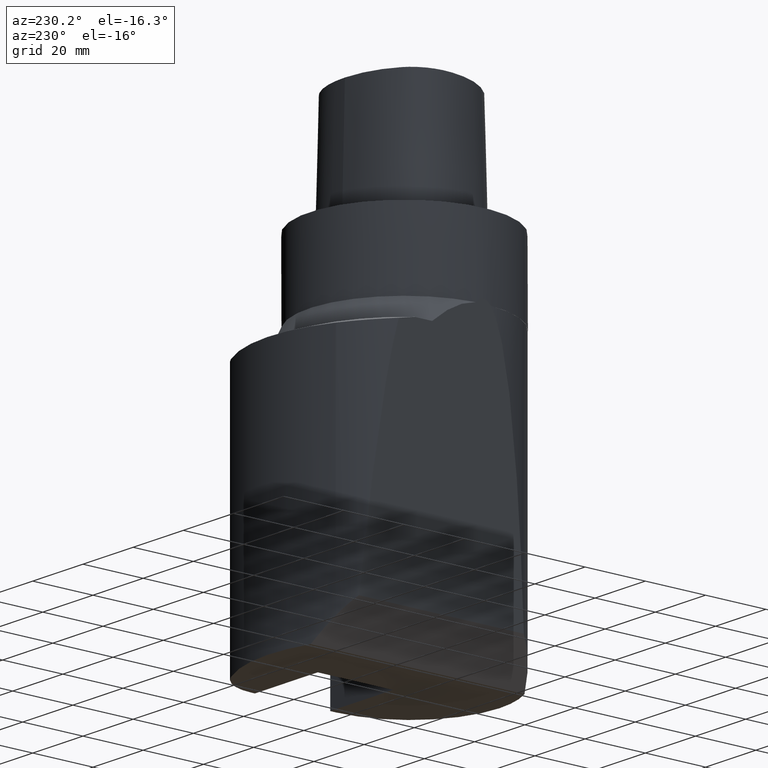
[diagram: clean part render]
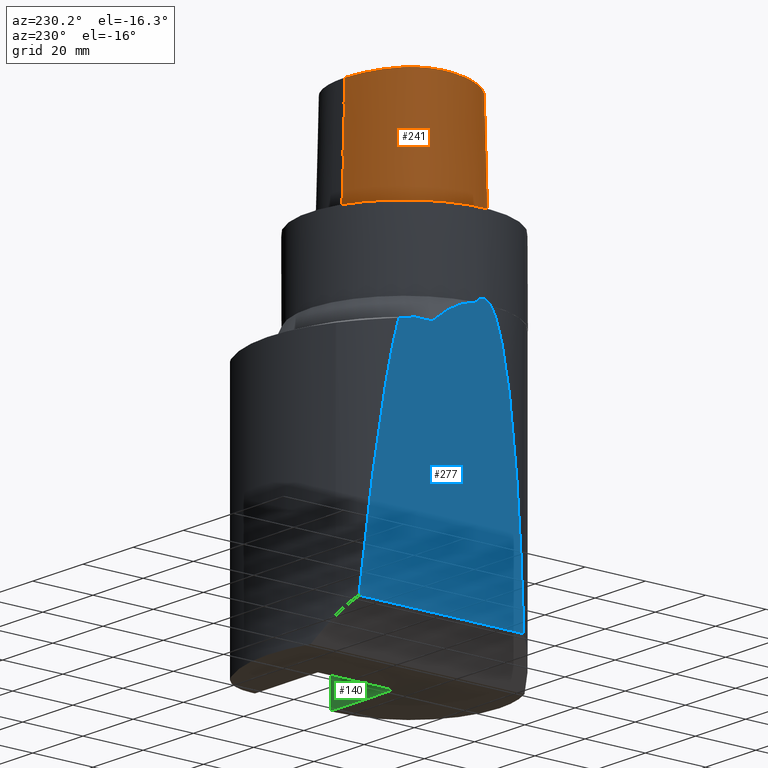
[diagram: same view with three faces highlighted in distinct colors, each labeled with its STEP entity id]
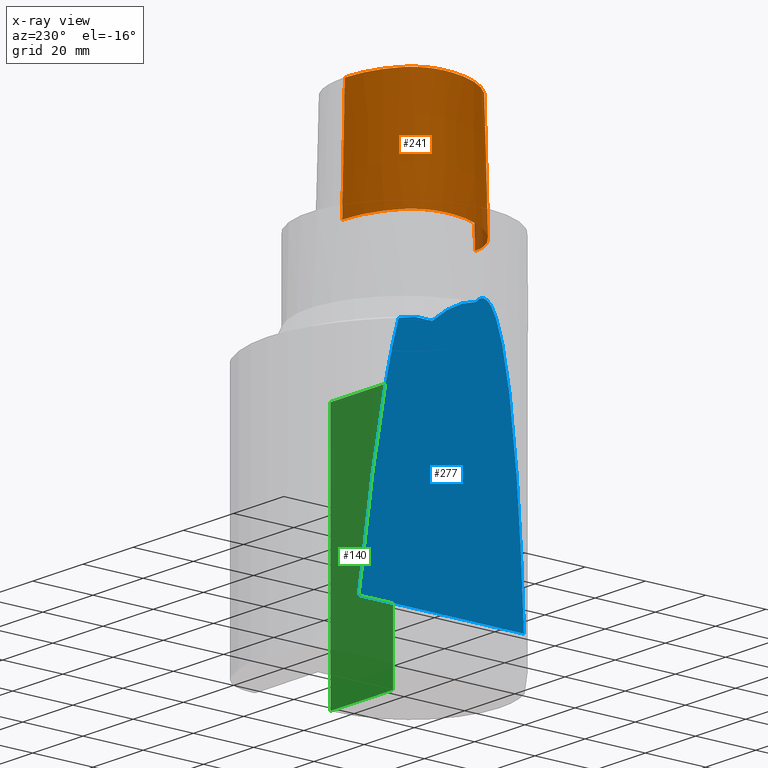
[diagram: x-ray of the same camera — body ghosted, the three highlighted faces saturated]
A machine part, auxiliary view with three faces highlighted in distinct colors.
The next image is the same camera in x-ray (body ghosted, the three faces saturated) — at least one of them is partly hidden behind the body in this view.
Their STEP definitions:

[orange] entity #241 — the highlighted face is a freeform B-spline surface patch.
#144=EDGE_CURVE('240[2]',#374,#375,#376,.T.);
#213=EDGE_CURVE('240[2]',#321,#344,#475,.T.);
#223=EDGE_CURVE('240[2]',#374,#321,#487,.T.);
#230=EDGE_CURVE('240[2]',#375,#344,#495,.T.);
#241=ADVANCED_FACE('240[2]',(#507),#508,.T.);
#321=VERTEX_POINT('',#589);
#344=VERTEX_POINT('',#620);
#374=VERTEX_POINT('',#703);
#375=VERTEX_POINT('',#704);
#376=B_SPLINE_CURVE_WITH_KNOTS('',3,(#705,#706,#707,#708,#709,#710,#711,#712,#713,#714,#715,#716,#717,#718,#719,#720),.UNSPECIFIED.,.F.,.F.,(4,1,1,1,1,1,1,1,1,1,1,1,1,4),(0.0,0.447924670568964,0.9388024242536,1.50591409090711,2.07314340012323,2.72424957442464,3.2253501842849,3.80982102049476,4.34867996267067,4.85900173381144,5.37972031856977,6.03459825488646,6.61113557741484,6.61513393087368),.UNSPECIFIED.);
#475=B_SPLINE_CURVE_WITH_KNOTS('',3,(#913,#914,#915,#916,#917,#918,#919,#920,#921,#922,#923,#924,#925,#926,#927,#928,#929,#930,#931,#932,#933,#934,#935,#936,#937,#938,#939,#940,#941,#942),.UNSPECIFIED.,.F.,.F.,(4,2,2,2,2,2,2,2,2,2,2,2,2,2,4),(0.0,0.576808184119594,1.15361636823919,1.43293031700624,1.7122442657733,1.99155821454036,2.27087216330741,2.85949822796588,3.15381126029511,3.44812429262434,4.36563722999232,5.28315016736029,5.8130055067864,6.21406971883035,6.6151339308743),.UNSPECIFIED.);
#487=LINE('',#959,#960);
#495=LINE('',#972,#973);
#507=FACE_OUTER_BOUND('',#992,.T.);
#508=B_SPLINE_SURFACE_WITH_KNOTS('',3,3,((#993,#994,#995,#996),(#997,#998,#999,#1000),(#1001,#1002,#1003,#1004),(#1005,#1006,#1007,#1008),(#1009,#1010,#1011,#1012),(#1013,#1014,#1015,#1016),(#1017,#1018,#1019,#1020),(#1021,#1022,#1023,#1024),(#1025,#1026,#1027,#1028),(#1029,#1030,#1031,#1032),(#1033,#1034,#1035,#1036),(#1037,#1038,#1039,#1040),(#1041,#1042,#1043,#1044),(#1045,#1046,#1047,#1048),(#1049,#1050,#1051,#1052),(#1053,#1054,#1055,#1056),(#1057,#1058,#1059,#1060),(#1061,#1062,#1063,#1064)),.UNSPECIFIED.,.F.,.F.,.F.,(4,1,1,1,1,1,1,1,1,2,1,1,1,1,4),(4,4),(-6.6151339308743,-6.20168806019465,-5.78824218951501,-5.37479631883537,-4.96135044815572,-4.13445870679644,-3.30756696543715,-2.89412109475751,-2.48067522407786,-2.06722935339822,-1.65378348271857,-1.24033761203893,-0.826891741359287,-0.413445870679644,0.0),(-3.8,0.0),.UNSPECIFIED.);
#589=CARTESIAN_POINT('',(-0.045171994691285,20.6766009553285,0.0));
#620=CARTESIAN_POINT('',(0.04359356758149,-23.4691235068931,0.0));
#703=CARTESIAN_POINT('',(-0.001218547003662,19.7276821925089,38.0));
#704=CARTESIAN_POINT('',(0.038736923393866,-22.5191997536361,38.0));
#705=CARTESIAN_POINT('',(-0.001218547003662,19.7276821925089,38.0));
#706=CARTESIAN_POINT('',(-1.49408492138443,19.6585333605309,38.0));
#707=CARTESIAN_POINT('',(-4.62297391420352,19.513604770166,38.0));
#708=CARTESIAN_POINT('',(-9.56160616752212,18.4291575730197,38.0));
#709=CARTESIAN_POINT('',(-14.5427684976927,16.2697452580488,38.0));
#710=CARTESIAN_POINT('',(-19.4315563551602,12.5302108980807,38.0));
#711=CARTESIAN_POINT('',(-21.306358833612,6.76352894547076,38.0));
#712=CARTESIAN_POINT('',(-21.0724946936277,0.957075236984038,38.0));
#713=CARTESIAN_POINT('',(-19.7876470880144,-4.34628503581652,38.0));
#714=CARTESIAN_POINT('',(-17.5396999600095,-9.33314444653089,38.0));
#715=CARTESIAN_POINT('',(-14.645447733857,-13.7185760345629,38.0));
#716=CARTESIAN_POINT('',(-10.7996726536643,-17.856257282137,38.0));
#717=CARTESIAN_POINT('',(-6.00479510196376,-21.2687382067675,38.0));
#718=CARTESIAN_POINT('',(-1.90747171908525,-22.5250621415864,38.0));
#719=CARTESIAN_POINT('',(0.025424107066464,-22.5192678176378,38.0));
#720=CARTESIAN_POINT('',(0.038736923394311,-22.519199753636,38.0));
#913=CARTESIAN_POINT('',(-0.045171994691285,20.6766009553285,0.0));
#914=CARTESIAN_POINT('',(-1.96758797023018,20.5875555983123,0.0));
#915=CARTESIAN_POINT('',(-3.95342611673668,20.4850284912479,-1.421085E-014));
#916=CARTESIAN_POINT('',(-7.86342529995983,19.7967909190733,7.105427E-015));
#917=CARTESIAN_POINT('',(-9.79439573378639,19.2503426360022,-1.421085E-014));
#918=CARTESIAN_POINT('',(-12.5351742003408,18.1332577991903,0.0));
#919=CARTESIAN_POINT('',(-13.4106560097683,17.7191970550452,0.0));
#920=CARTESIAN_POINT('',(-15.1227536857037,16.7802221286297,7.105427E-015));
#921=CARTESIAN_POINT('',(-15.9615364355591,16.2592643918937,0.0));
#922=CARTESIAN_POINT('',(-17.5597683566648,15.0665385774434,0.0));
#923=CARTESIAN_POINT('',(-18.3143568572283,14.3955246024635,-7.105427E-015));
#924=CARTESIAN_POINT('',(-19.638502795217,12.8665014798265,-7.105427E-015));
#925=CARTESIAN_POINT('',(-20.1979602542332,11.999774776593,0.0));
#926=CARTESIAN_POINT('',(-21.5622718142072,9.15853750369237,0.0));
#927=CARTESIAN_POINT('',(-21.9947483544612,7.02185767378744,0.0));
#928=CARTESIAN_POINT('',(-22.1134563193034,3.90325125553384,0.0));
#929=CARTESIAN_POINT('',(-22.0668279345839,2.87928778574124,0.0));
#930=CARTESIAN_POINT('',(-21.8551986681238,0.853042087412899,0.0));
#931=CARTESIAN_POINT('',(-21.6926789478513,-0.149498515836233,-1.421085E-014));
#932=CARTESIAN_POINT('',(-20.816421377794,-4.23736740865811,1.421085E-014));
#933=CARTESIAN_POINT('',(-19.659579746308,-7.20863943907163,-1.421085E-014));
#934=CARTESIAN_POINT('',(-16.574666895304,-12.7137973313948,0.0));
#935=CARTESIAN_POINT('',(-14.6473715787034,-15.2481179483411,-7.105427E-015));
#936=CARTESIAN_POINT('',(-11.050022952355,-18.7018400427945,7.105427E-015));
#937=CARTESIAN_POINT('',(-9.61826302632357,-19.8571497088389,0.0));
#938=CARTESIAN_POINT('',(-6.85491632421896,-21.5712784212,-1.421085E-014));
#939=CARTESIAN_POINT('',(-5.58035985461548,-22.2135461215161,0.0));
#940=CARTESIAN_POINT('',(-2.86743329636734,-23.1704091567902,0.0));
#941=CARTESIAN_POINT('',(-1.42611943322398,-23.4766376606116,0.0));
#942=CARTESIAN_POINT('',(0.04359356758149,-23.4691235068931,0.0));
#959=CARTESIAN_POINT('',(-0.001218547003662,19.7276821925089,38.0));
#960=VECTOR('',#1439,38.0118715498723);
#972=CARTESIAN_POINT('',(0.038736923393866,-22.5191997536361,38.0));
#973=VECTOR('',#1449,38.0118715498723);
#992=EDGE_LOOP('',(#1459,#1460,#1461,#1462));
#993=CARTESIAN_POINT('',(0.038736923393866,-22.5191997536361,38.0));
#994=CARTESIAN_POINT('',(0.04035580478973,-22.8358410047159,25.3333333333066));
#995=CARTESIAN_POINT('',(0.041974686185626,-23.1524822558133,12.6666666666934));
#996=CARTESIAN_POINT('',(0.04359356758149,-23.4691235068931,0.0));
#997=CARTESIAN_POINT('',(-1.33786123484754,-22.5261650259856,38.0));
#998=CARTESIAN_POINT('',(-1.38240731367927,-22.8430399310626,25.3333333333066));
#999=CARTESIAN_POINT('',(-1.42695339249092,-23.1599147815484,12.6666666666934));
#1000=CARTESIAN_POINT('',(-1.4714994713963,-23.4767895315797,0.0));
#1001=CARTESIAN_POINT('',(-4.08909358431842,-21.9268839879558,38.0));
#1002=CARTESIAN_POINT('',(-4.20580731135515,-22.2249725500078,25.3333333333066));
#1003=CARTESIAN_POINT('',(-4.32252104640446,-22.5230611651922,12.6666666666934));
#1004=CARTESIAN_POINT('',(-4.43923476371401,-22.821149804767,0.0));
#1005=CARTESIAN_POINT('',(-7.8333083619947,-19.9973514861616,38.0));
#1006=CARTESIAN_POINT('',(-8.00568301809614,-20.2649260859405,25.3333333333066));
#1007=CARTESIAN_POINT('',(-8.1780576640789,-20.532500564315,12.6666666666934));
#1008=CARTESIAN_POINT('',(-8.35043230079961,-20.8000751253325,0.0));
#1009=CARTESIAN_POINT('',(-11.1035071147626,-17.450554957873,38.0));
#1010=CARTESIAN_POINT('',(-11.3173048160562,-17.6855739222454,25.3333333333066));
#1011=CARTESIAN_POINT('',(-11.5311025116181,-17.9205928617968,12.6666666666934));
#1012=CARTESIAN_POINT('',(-11.744900222602,-18.1556117874078,0.0));
#1013=CARTESIAN_POINT('',(-14.9379535189057,-13.461132049697,38.0));
#1014=CARTESIAN_POINT('',(-15.191622410671,-13.6542981711372,25.3333333333066));
#1015=CARTESIAN_POINT('',(-15.4452913389853,-13.8474645327131,12.6666666666934));
#1016=CARTESIAN_POINT('',(-15.6989602501314,-14.0406306929147,0.0));
#1017=CARTESIAN_POINT('',(-18.6681263017223,-7.59391757463204,38.0));
#1018=CARTESIAN_POINT('',(-18.9571800800711,-7.73136168081928,25.3333333333066));
#1019=CARTESIAN_POINT('',(-19.2462337287194,-7.86880572399774,12.6666666666934));
#1020=CARTESIAN_POINT('',(-19.5352875070682,-8.00624990770787,0.0));
#1021=CARTESIAN_POINT('',(-20.7857899858339,-0.952862819790525,38.0));
#1022=CARTESIAN_POINT('',(-21.0973808305434,-1.02218087467418,25.3333333333066));
#1023=CARTESIAN_POINT('',(-21.408971677436,-1.09149899580772,12.6666666666934));
#1024=CARTESIAN_POINT('',(-21.7205626190491,-1.16081708945282,0.0));
#1025=CARTESIAN_POINT('',(-21.2911760556836,4.5469215763113,38.0));
#1026=CARTESIAN_POINT('',(-21.610337904926,4.54783292082248,25.3333333333066));
#1027=CARTESIAN_POINT('',(-21.9294998290918,4.54874426225691,12.6666666666934));
#1028=CARTESIAN_POINT('',(-22.2486616783342,4.54965558738736,0.0));
#1029=CARTESIAN_POINT('',(-20.7345309521958,8.74909381391006,38.0));
#1030=CARTESIAN_POINT('',(-21.0445680426217,8.83349432450556,25.3333333333066));
#1031=CARTESIAN_POINT('',(-21.3546050933631,8.91789488065068,12.6666666666934));
#1032=CARTESIAN_POINT('',(-21.6646421256468,9.00229539124618,0.0));
#1033=CARTESIAN_POINT('',(-19.5531512296439,11.3174844040833,38.0));
#1034=CARTESIAN_POINT('',(-19.8336219699984,11.4710077674213,25.3333333333066));
#1035=CARTESIAN_POINT('',(-20.1140927680763,11.6245311337623,12.6666666666934));
#1036=CARTESIAN_POINT('',(-20.3945635471922,11.7780544971003,0.0));
#1037=CARTESIAN_POINT('',(-17.9100913688793,13.524027510437,38.0));
#1038=CARTESIAN_POINT('',(-18.1375785458768,13.7487051053655,25.3333333333066));
#1039=CARTESIAN_POINT('',(-18.365065665211,13.9733826973296,12.6666666666934));
#1040=CARTESIAN_POINT('',(-18.5925528034471,14.1980602922581,0.0));
#1041=CARTESIAN_POINT('',(-15.7996349656398,15.3762170634413,38.0));
#1042=CARTESIAN_POINT('',(-15.9739761051783,15.6434029846179,25.3333333333066));
#1043=CARTESIAN_POINT('',(-16.1483172726872,15.9105889315134,12.6666666666934));
#1044=CARTESIAN_POINT('',(-16.3226584122258,16.1777748720707,0.0));
#1045=CARTESIAN_POINT('',(-12.1175640002064,17.3825162484012,38.0));
#1046=CARTESIAN_POINT('',(-12.2475895903055,17.6724842099619,25.3333333333066));
#1047=CARTESIAN_POINT('',(-12.3776152070492,17.9624521925696,12.6666666666934));
#1048=CARTESIAN_POINT('',(-12.5076407874579,18.2524201541303,0.0));
#1049=CARTESIAN_POINT('',(-8.21761151654222,18.7588585989994,38.0));
#1050=CARTESIAN_POINT('',(-8.30099497910627,19.0656105427881,25.3333333333066));
#1051=CARTESIAN_POINT('',(-8.38437843913309,19.3723624535439,12.6666666666934));
#1052=CARTESIAN_POINT('',(-8.46776192107786,19.679114377952,0.0));
#1053=CARTESIAN_POINT('',(-4.13466093881225,19.5396850837055,38.0));
#1054=CARTESIAN_POINT('',(-4.16658562115465,19.8557172636973,25.3333333333066));
#1055=CARTESIAN_POINT('',(-4.19851029939059,20.1717494367229,12.6666666666934));
#1056=CARTESIAN_POINT('',(-4.23043497193604,20.487781597334,0.0));
#1057=CARTESIAN_POINT('',(-1.37917220403684,19.6638560588908,38.0));
#1058=CARTESIAN_POINT('',(-1.39382511685176,19.98016223565,25.3333333333066));
#1059=CARTESIAN_POINT('',(-1.40847802945569,20.296468399885,12.6666666666934));
#1060=CARTESIAN_POINT('',(-1.42313094248379,20.6127745766442,0.0));
#1061=CARTESIAN_POINT('',(-0.001218547003662,19.7276821925089,38.0));
#1062=CARTESIAN_POINT('',(-0.015869696232855,20.043988446791,25.3333333333066));
#1063=CARTESIAN_POINT('',(-0.030520845462092,20.3602947010464,12.6666666666934));
#1064=CARTESIAN_POINT('',(-0.045171994691285,20.6766009553285,0.0));
#1439=DIRECTION('',(-0.001156308434589,0.02496374748543,-0.999687688361864));
#1449=DIRECTION('',(0.000127766510556,-0.024990186342461,-0.999687688361864));
#1459=ORIENTED_EDGE('',*,*,#213,.T.);
#1460=ORIENTED_EDGE('',*,*,#230,.F.);
#1461=ORIENTED_EDGE('',*,*,#144,.F.);
#1462=ORIENTED_EDGE('',*,*,#223,.T.);

[blue] entity #277 — the highlighted planar face has unit normal (0.9976, -0, 0.0698).
#111=EDGE_CURVE('240[2]',#324,#325,#326,.T.);
#131=EDGE_CURVE('240[2]',#325,#354,#355,.T.);
#148=EDGE_CURVE('240[2]',#382,#324,#383,.T.);
#152=EDGE_CURVE('240[2]',#388,#389,#390,.T.);
#167=EDGE_CURVE('240[2]',#411,#412,#413,.T.);
#258=EDGE_CURVE('240[2]',#354,#388,#529,.T.);
#277=ADVANCED_FACE('240[2]',(#552),#553,.F.);
#291=EDGE_CURVE('240[2]',#412,#382,#567,.T.);
#299=EDGE_CURVE('240[2]',#389,#411,#575,.T.);
#324=VERTEX_POINT('',#593);
#325=VERTEX_POINT('',#594);
#326=LINE('',#595,#596);
#354=VERTEX_POINT('',#665);
#355=(B_SPLINE_CURVE(2,(#667,#668,#669),.UNSPECIFIED.,.F.,.F.)B_SPLINE_CURVE_WITH_KNOTS((3,3),(2.06715274543633E-012,16.0797056005118),.UNSPECIFIED.)RATIONAL_B_SPLINE_CURVE((1.0,1.01715240322138,1.00000201456526))BOUNDED_CURVE()REPRESENTATION_ITEM('')GEOMETRIC_REPRESENTATION_ITEM()CURVE());
#382=VERTEX_POINT('',#733);
#383=(B_SPLINE_CURVE(2,(#735,#736,#737),.UNSPECIFIED.,.F.,.F.)B_SPLINE_CURVE_WITH_KNOTS((3,3),(5.34196374309043,11.0515738639116),.UNSPECIFIED.)RATIONAL_B_SPLINE_CURVE((1.00408316679525,1.00422367331628,1.0))BOUNDED_CURVE()REPRESENTATION_ITEM('')GEOMETRIC_REPRESENTATION_ITEM()CURVE());
#388=VERTEX_POINT('',#751);
#389=VERTEX_POINT('',#752);
#390=(B_SPLINE_CURVE(2,(#754,#755,#756),.UNSPECIFIED.,.F.,.F.)B_SPLINE_CURVE_WITH_KNOTS((3,3),(0.000944343435736846,0.127848728797373),.UNSPECIFIED.)RATIONAL_B_SPLINE_CURVE((1.00000201456526,1.00013736900428,1.00027058682697))BOUNDED_CURVE()REPRESENTATION_ITEM('')GEOMETRIC_REPRESENTATION_ITEM()CURVE());
#411=VERTEX_POINT('',#807);
#412=VERTEX_POINT('',#808);
#413=LINE('',#809,#810);
#529=ELLIPSE('',#1109,451.463474422701,31.4924999999999);
#552=FACE_OUTER_BOUND('',#1206,.T.);
#553=PLANE('',#1207);
#567=ELLIPSE('',#1232,286.711740524058,19.9999999999996);
#575=ELLIPSE('',#1255,451.570991325388,31.4999999999992);
#593=CARTESIAN_POINT('',(-30.8706586925083,22.158574680939,-32.999999822605));
#594=CARTESIAN_POINT('',(-30.8706586925083,16.4924962298195,-32.999999822605));
#595=CARTESIAN_POINT('',(-30.8706586925083,-55.5165247022846,-32.9999998226051));
#596=VECTOR('',#1265,1.0);
#665=CARTESIAN_POINT('',(-31.39529675217,2.47242757086968,-25.4973260258153));
#667=CARTESIAN_POINT('',(-30.8706586925083,16.4924962298198,-32.9999998226053));
#668=CARTESIAN_POINT('',(-31.3269005056537,9.16536832056688,-26.4754379204568));
#669=CARTESIAN_POINT('',(-31.39529675217,2.47242757086967,-25.4973260258153));
#733=CARTESIAN_POINT('',(-30.787337005311,27.489346166159,-34.1915554611303));
#735=CARTESIAN_POINT('',(-30.7873370054485,27.4893461661464,-34.191555461193));
#736=CARTESIAN_POINT('',(-30.8334710360313,24.7160944565151,-33.5318080867513));
#737=CARTESIAN_POINT('',(-30.8706586925083,22.1585746809376,-32.9999998226048));
#751=CARTESIAN_POINT('',(-31.39529675217,-2.47242757086985,-25.4973260258153));
#752=CARTESIAN_POINT('',(-31.3941749316576,-2.57987991202793,-25.5133688065619));
#754=CARTESIAN_POINT('',(-31.39529675217,-2.47242757086985,-25.4973260258153));
#755=CARTESIAN_POINT('',(-31.3947477713382,-2.52614829923064,-25.5051768174723));
#756=CARTESIAN_POINT('',(-31.3941749316575,-2.57987991202769,-25.5133688065635));
#807=CARTESIAN_POINT('',(-25.5980298198127,-18.3573110597378,-108.402105626526));
#808=CARTESIAN_POINT('',(-25.5980298198127,36.3840771800419,-108.402105626526));
#809=CARTESIAN_POINT('',(-25.5980298198127,-147.53304940457,-108.402105626526));
#810=VECTOR('',#1337,1.0);
#1109=AXIS2_PLACEMENT_3D('',#1480,#1481,#1482);
#1206=EDGE_LOOP('',(#1525,#1526,#1527,#1528,#1529,#1530,#1531,#1532));
#1207=AXIS2_PLACEMENT_3D('',#1533,#1534,#1535);
#1232=AXIS2_PLACEMENT_3D('',#1546,#1547,#1548);
#1255=AXIS2_PLACEMENT_3D('',#1551,#1552,#1553);
#1265=DIRECTION('',(-1.22464679914735E-016,-1.0,1.22464679914735E-016));
#1337=DIRECTION('',(1.22464679914735E-016,1.0,-1.22464679914735E-016));
#1480=CARTESIAN_POINT('',(-2.90529687703206E-014,-1.50635059981141E-012,-474.470986909013));
#1481=DIRECTION('',(0.997564050259824,-1.13623657880461E-016,0.0697564737441278));
#1482=DIRECTION('',(-0.0697564737441278,3.20222725813854E-015,0.997564050259824));
#1525=ORIENTED_EDGE('',*,*,#152,.F.);
#1526=ORIENTED_EDGE('',*,*,#258,.F.);
#1527=ORIENTED_EDGE('',*,*,#131,.F.);
#1528=ORIENTED_EDGE('',*,*,#111,.F.);
#1529=ORIENTED_EDGE('',*,*,#148,.F.);
#1530=ORIENTED_EDGE('',*,*,#291,.F.);
#1531=ORIENTED_EDGE('',*,*,#167,.F.);
#1532=ORIENTED_EDGE('',*,*,#299,.F.);
#1533=CARTESIAN_POINT('',(-28.7408714861153,-147.53304940457,-63.4573758590454));
#1534=DIRECTION('',(0.997564050259824,-1.13623657880461E-016,0.0697564737441278));
#1535=DIRECTION('',(0.0,-1.0,-1.62886183578088E-015));
#1546=CARTESIAN_POINT('',(-11.5,22.1979728804233,-310.013324956832));
#1547=DIRECTION('',(0.997564050259824,-1.13623657880461E-016,0.0697564737441278));
#1548=DIRECTION('',(0.0697564737441278,-1.39251770567627E-016,-0.997564050259824));
#1551=CARTESIAN_POINT('',(-9.38547670543248E-013,1.4210854715202E-013,-474.470986909));
#1552=DIRECTION('',(0.997564050259824,-1.13623657880461E-016,0.0697564737441278));
#1553=DIRECTION('',(0.0697564737441278,-1.39251770567627E-016,-0.997564050259824));

[green] entity #140 — the highlighted planar face has unit normal (-0, -1, 0).
#135=EDGE_CURVE('240[2]',#360,#361,#362,.T.);
#140=ADVANCED_FACE('240[2]',(#369),#370,.F.);
#150=EDGE_CURVE('240[2]',#385,#332,#386,.T.);
#225=EDGE_CURVE('240[2]',#332,#360,#489,.F.);
#297=EDGE_CURVE('240[2]',#385,#361,#573,.F.);
#332=VERTEX_POINT('',#604);
#360=VERTEX_POINT('',#682);
#361=VERTEX_POINT('',#683);
#362=LINE('',#684,#685);
#369=FACE_OUTER_BOUND('',#695,.T.);
#370=PLANE('',#696);
#385=VERTEX_POINT('',#746);
#386=LINE('',#747,#748);
#489=LINE('',#963,#964);
#573=LINE('',#1251,#1252);
#604=CARTESIAN_POINT('',(29.5000000000014,-3.40669318076584E-013,-119.999999822605));
#682=CARTESIAN_POINT('',(29.5000000000015,-3.30319195681879E-013,-37.9999998226046));
#683=CARTESIAN_POINT('',(4.50000000000095,-3.27012030343544E-013,-37.9999998226045));
#684=CARTESIAN_POINT('',(17.2488883396504,-3.28735001951751E-013,-37.9999998226045));
#685=VECTOR('',#1308,1.0);
#695=EDGE_LOOP('',(#1311,#1312,#1313,#1314));
#696=AXIS2_PLACEMENT_3D('',#1315,#1316,#1317);
#746=CARTESIAN_POINT('',(4.50000000000095,-3.37362152738249E-013,-119.999999822605));
#747=CARTESIAN_POINT('',(8.5000000000006,-3.38543890621951E-013,-119.999999822605));
#748=VECTOR('',#1319,1.0);
#963=CARTESIAN_POINT('',(29.5000000000015,-3.60477664228018E-013,-277.139999816032));
#964=VECTOR('',#1440,1.0);
#1251=CARTESIAN_POINT('',(4.50000000000095,-3.57170498889683E-013,-277.139999816032));
#1252=VECTOR('',#1550,1.0);
#1308=DIRECTION('',(-1.0,1.22464679914735E-016,-1.49975978266185E-032));
#1311=ORIENTED_EDGE('',*,*,#150,.F.);
#1312=ORIENTED_EDGE('',*,*,#297,.T.);
#1313=ORIENTED_EDGE('',*,*,#135,.F.);
#1314=ORIENTED_EDGE('',*,*,#225,.F.);
#1315=CARTESIAN_POINT('',(17.0000000000012,-3.57991414290382E-013,-277.139999816032));
#1316=DIRECTION('',(-1.22464679914735E-016,-1.0,1.22464679914735E-016));
#1317=DIRECTION('',(-1.0,1.22464679914735E-016,0.0));
#1319=DIRECTION('',(1.0,-1.22464679914735E-016,-6.12323399573677E-017));
#1440=DIRECTION('',(-6.12323399573677E-017,-1.22464679914735E-016,-1.0));
#1550=DIRECTION('',(-6.12323399573677E-017,-1.22464679914735E-016,-1.0));